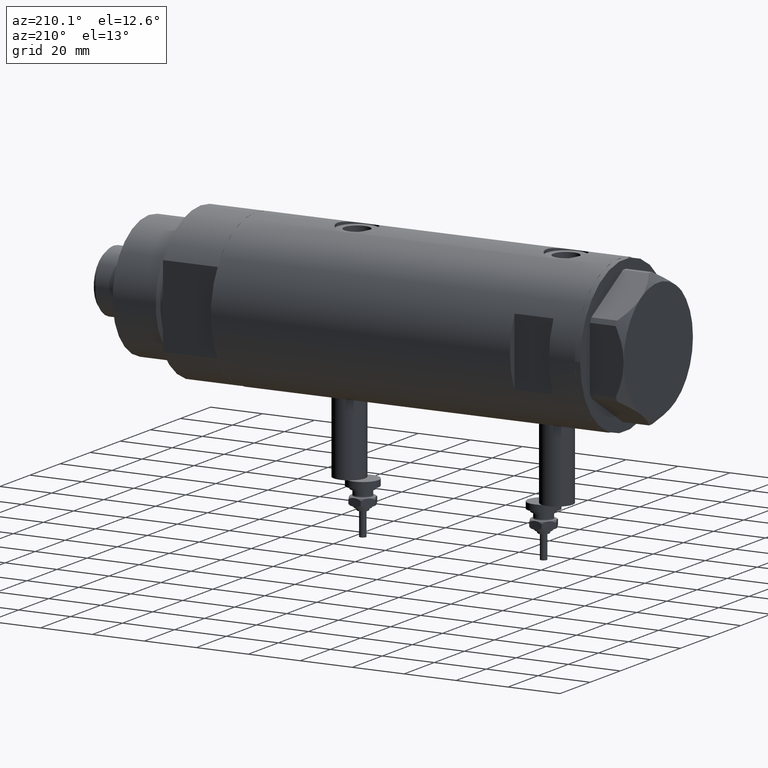
[diagram: clean part render]
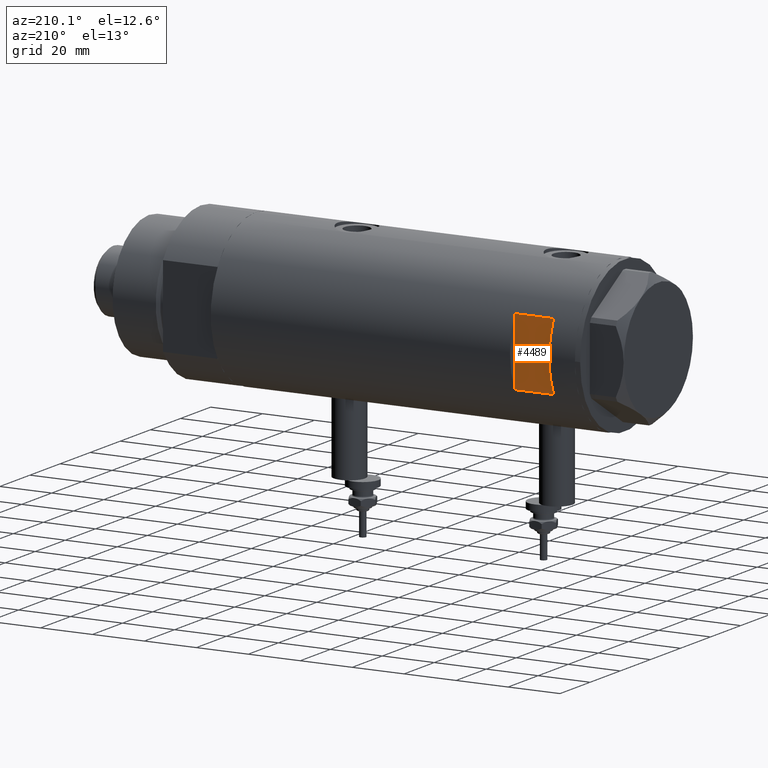
[diagram: same view with one face highlighted and labeled with its STEP entity id]
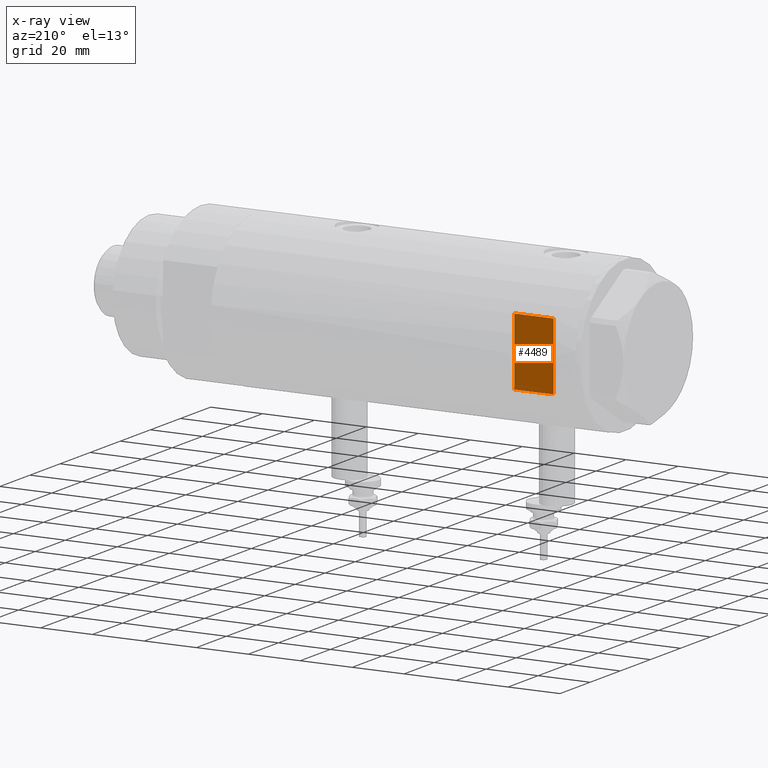
[diagram: x-ray of the same camera — body ghosted, the highlighted face saturated]
A machine part, auxiliary view. The second image highlights one B-rep face of the part: STEP entity #4489.
The next image is the same camera in x-ray: the body ghosted, the highlighted face saturated — about 0% of this face is hidden behind the body in this view.
In plain terms, the highlighted planar face has unit normal (0, -1, -0).
Its self-contained STEP definition (entity closure, byte-faithful):
#165 = AXIS2_PLACEMENT_3D ( 'NONE', #1735, #1300, #3469 ) ;
#430 = LINE ( 'NONE', #2715, #4096 ) ;
#710 = VERTEX_POINT ( 'NONE', #4853 ) ;
#732 = DIRECTION ( 'NONE',  ( -0.000000000000000000, -0.000000000000000000, -1.000000000000000000 ) ) ;
#814 = VECTOR ( 'NONE', #3156, 1000.000000000000000 ) ;
#843 = EDGE_LOOP ( 'NONE', ( #4222, #4362, #2966, #3542 ) ) ;
#1028 = LINE ( 'NONE', #1502, #3530 ) ;
#1097 = VERTEX_POINT ( 'NONE', #1803 ) ;
#1262 = FACE_OUTER_BOUND ( 'NONE', #843, .T. ) ;
#1300 = DIRECTION ( 'NONE',  ( 0.000000000000000000, -1.000000000000000000, -0.000000000000000000 ) ) ;
#1502 = CARTESIAN_POINT ( 'NONE',  ( -29.50000000000000355, 26.50000000000000355, 60.09999999999998721 ) ) ;
#1735 = CARTESIAN_POINT ( 'NONE',  ( -29.50000000000000355, 26.50000000000000355, 60.09999999999998721 ) ) ;
#1762 = PLANE ( 'NONE',  #165 ) ;
#1803 = CARTESIAN_POINT ( 'NONE',  ( 12.96148139681573319, 26.49999999999998934, 60.09999999999998721 ) ) ;
#1851 = DIRECTION ( 'NONE',  ( 1.000000000000000000, -0.000000000000000000, -0.000000000000000000 ) ) ;
#2234 = CARTESIAN_POINT ( 'NONE',  ( -12.96148139681573319, 26.49999999999998934, 60.09999999999998721 ) ) ;
#2405 = EDGE_CURVE ( 'NONE', #4752, #3426, #4022, .T. ) ;
#2444 = VECTOR ( 'NONE', #732, 1000.000000000000000 ) ;
#2715 = CARTESIAN_POINT ( 'NONE',  ( -29.50000000000000355, 26.50000000000000355, 45.09999999999998721 ) ) ;
#2966 = ORIENTED_EDGE ( 'NONE', *, *, #2405, .T. ) ;
#3019 = EDGE_CURVE ( 'NONE', #1097, #710, #5790, .T. ) ;
#3123 = EDGE_CURVE ( 'NONE', #4752, #710, #430, .T. ) ;
#3156 = DIRECTION ( 'NONE',  ( 0.000000000000000000, 0.000000000000000000, 1.000000000000000000 ) ) ;
#3426 = VERTEX_POINT ( 'NONE', #2234 ) ;
#3469 = DIRECTION ( 'NONE',  ( 0.000000000000000000, 0.000000000000000000, -1.000000000000000000 ) ) ;
#3530 = VECTOR ( 'NONE', #1851, 1000.000000000000000 ) ;
#3542 = ORIENTED_EDGE ( 'NONE', *, *, #5917, .T. ) ;
#3967 = CARTESIAN_POINT ( 'NONE',  ( -12.96148139681573319, 26.49999999999999645, -70.09999999999999432 ) ) ;
#4022 = LINE ( 'NONE', #3967, #814 ) ;
#4081 = DIRECTION ( 'NONE',  ( 1.000000000000000000, -0.000000000000000000, -0.000000000000000000 ) ) ;
#4096 = VECTOR ( 'NONE', #4081, 1000.000000000000000 ) ;
#4222 = ORIENTED_EDGE ( 'NONE', *, *, #3019, .T. ) ;
#4362 = ORIENTED_EDGE ( 'NONE', *, *, #3123, .F. ) ;
#4489 = ADVANCED_FACE ( 'NONE', ( #1262 ), #1762, .F. ) ;
#4752 = VERTEX_POINT ( 'NONE', #5625 ) ;
#4853 = CARTESIAN_POINT ( 'NONE',  ( 12.96148139681571898, 26.50000000000000355, 45.09999999999998721 ) ) ;
#5625 = CARTESIAN_POINT ( 'NONE',  ( -12.96148139681574030, 26.50000000000000355, 45.09999999999998721 ) ) ;
#5790 = LINE ( 'NONE', #5845, #2444 ) ;
#5845 = CARTESIAN_POINT ( 'NONE',  ( 12.96148139681573319, 26.49999999999999645, -70.09999999999999432 ) ) ;
#5917 = EDGE_CURVE ( 'NONE', #3426, #1097, #1028, .T. ) ;